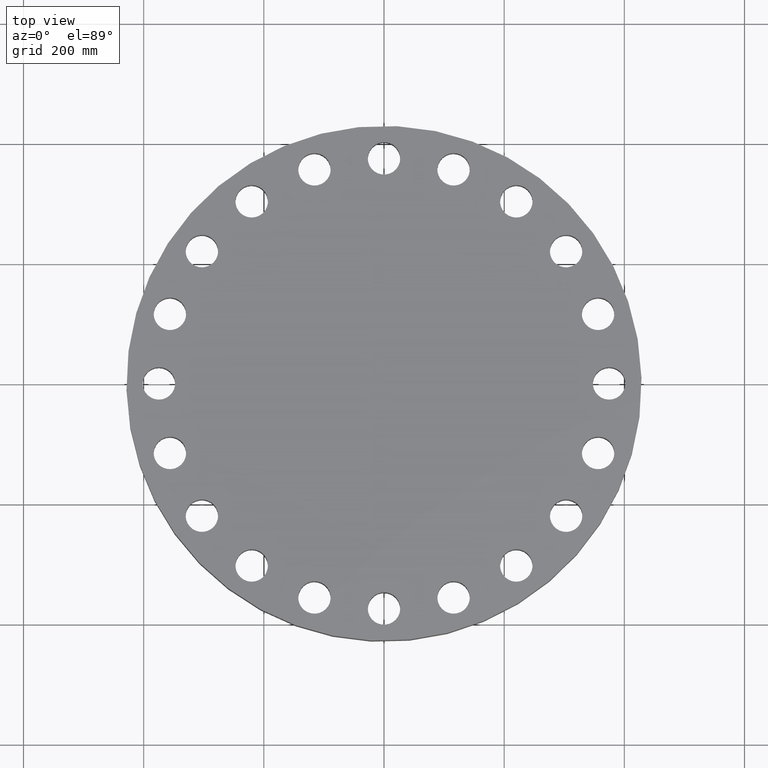
[diagram: clean part render]
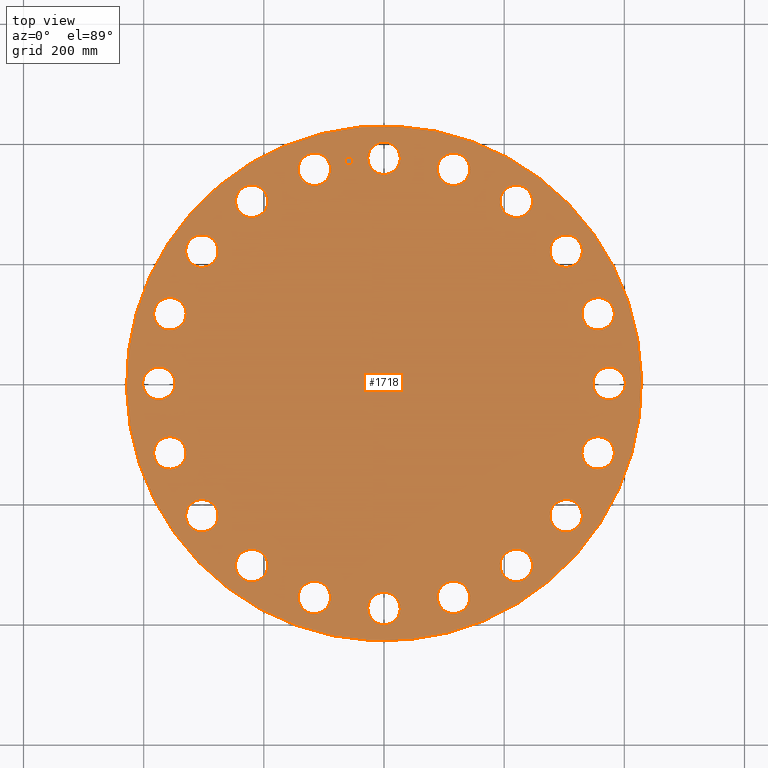
[diagram: same view with one face highlighted and labeled with its STEP entity id]
A machine part, top view. The second image highlights one B-rep face of the part: STEP entity #1718.
In plain terms, the highlighted planar face has unit normal (0, 0, -1).
Its self-contained STEP definition (entity closure, byte-faithful):
#126=AXIS2_PLACEMENT_3D('Circle Axis2P3D',#124,#125,$) ;
#143=AXIS2_PLACEMENT_3D('Circle Axis2P3D',#141,#142,$) ;
#183=AXIS2_PLACEMENT_3D('Circle Axis2P3D',#181,#182,$) ;
#200=AXIS2_PLACEMENT_3D('Circle Axis2P3D',#198,#199,$) ;
#240=AXIS2_PLACEMENT_3D('Circle Axis2P3D',#238,#239,$) ;
#257=AXIS2_PLACEMENT_3D('Circle Axis2P3D',#255,#256,$) ;
#297=AXIS2_PLACEMENT_3D('Circle Axis2P3D',#295,#296,$) ;
#314=AXIS2_PLACEMENT_3D('Circle Axis2P3D',#312,#313,$) ;
#354=AXIS2_PLACEMENT_3D('Circle Axis2P3D',#352,#353,$) ;
#371=AXIS2_PLACEMENT_3D('Circle Axis2P3D',#369,#370,$) ;
#411=AXIS2_PLACEMENT_3D('Circle Axis2P3D',#409,#410,$) ;
#428=AXIS2_PLACEMENT_3D('Circle Axis2P3D',#426,#427,$) ;
#468=AXIS2_PLACEMENT_3D('Circle Axis2P3D',#466,#467,$) ;
#485=AXIS2_PLACEMENT_3D('Circle Axis2P3D',#483,#484,$) ;
#525=AXIS2_PLACEMENT_3D('Circle Axis2P3D',#523,#524,$) ;
#542=AXIS2_PLACEMENT_3D('Circle Axis2P3D',#540,#541,$) ;
#582=AXIS2_PLACEMENT_3D('Circle Axis2P3D',#580,#581,$) ;
#599=AXIS2_PLACEMENT_3D('Circle Axis2P3D',#597,#598,$) ;
#639=AXIS2_PLACEMENT_3D('Circle Axis2P3D',#637,#638,$) ;
#656=AXIS2_PLACEMENT_3D('Circle Axis2P3D',#654,#655,$) ;
#696=AXIS2_PLACEMENT_3D('Circle Axis2P3D',#694,#695,$) ;
#713=AXIS2_PLACEMENT_3D('Circle Axis2P3D',#711,#712,$) ;
#753=AXIS2_PLACEMENT_3D('Circle Axis2P3D',#751,#752,$) ;
#770=AXIS2_PLACEMENT_3D('Circle Axis2P3D',#768,#769,$) ;
#810=AXIS2_PLACEMENT_3D('Circle Axis2P3D',#808,#809,$) ;
#827=AXIS2_PLACEMENT_3D('Circle Axis2P3D',#825,#826,$) ;
#867=AXIS2_PLACEMENT_3D('Circle Axis2P3D',#865,#866,$) ;
#884=AXIS2_PLACEMENT_3D('Circle Axis2P3D',#882,#883,$) ;
#924=AXIS2_PLACEMENT_3D('Circle Axis2P3D',#922,#923,$) ;
#941=AXIS2_PLACEMENT_3D('Circle Axis2P3D',#939,#940,$) ;
#981=AXIS2_PLACEMENT_3D('Circle Axis2P3D',#979,#980,$) ;
#998=AXIS2_PLACEMENT_3D('Circle Axis2P3D',#996,#997,$) ;
#1038=AXIS2_PLACEMENT_3D('Circle Axis2P3D',#1036,#1037,$) ;
#1055=AXIS2_PLACEMENT_3D('Circle Axis2P3D',#1053,#1054,$) ;
#1095=AXIS2_PLACEMENT_3D('Circle Axis2P3D',#1093,#1094,$) ;
#1112=AXIS2_PLACEMENT_3D('Circle Axis2P3D',#1110,#1111,$) ;
#1152=AXIS2_PLACEMENT_3D('Circle Axis2P3D',#1150,#1151,$) ;
#1169=AXIS2_PLACEMENT_3D('Circle Axis2P3D',#1167,#1168,$) ;
#1358=AXIS2_PLACEMENT_3D('Circle Axis2P3D',#1356,#1357,$) ;
#1377=AXIS2_PLACEMENT_3D('Circle Axis2P3D',#1375,#1376,$) ;
#1408=AXIS2_PLACEMENT_3D('Circle Axis2P3D',#1406,#1407,$) ;
#1420=AXIS2_PLACEMENT_3D('Circle Axis2P3D',#1418,#1419,$) ;
#1614=AXIS2_PLACEMENT_3D('Plane Axis2P3D',#1611,#1612,#1613) ;
#1702=AXIS2_PLACEMENT_3D('Circle Axis2P3D',#1700,#1701,$) ;
#1711=AXIS2_PLACEMENT_3D('Circle Axis2P3D',#1709,#1710,$) ;
#107=CARTESIAN_POINT('Vertex',(5.28910184054,13.2536702412,4.25000000002)) ;
#121=CARTESIAN_POINT('Vertex',(3.82689949356,14.8024969896,4.25000000002)) ;
#124=CARTESIAN_POINT('Axis2P3D Location',(4.55800066705,14.0280836154,4.25000000002)) ;
#141=CARTESIAN_POINT('Axis2P3D Location',(4.55800066705,14.0280836154,4.25000000002)) ;
#164=CARTESIAN_POINT('Vertex',(-0.934625428417,-14.2394118014,4.25000000002)) ;
#178=CARTESIAN_POINT('Vertex',(0.934625428417,-15.2605881987,4.25000000002)) ;
#181=CARTESIAN_POINT('Axis2P3D Location',(8.35666987406E-015,-14.7500000001,4.25000000002)) ;
#198=CARTESIAN_POINT('Axis2P3D Location',(8.35666987406E-015,-14.7500000001,4.25000000002)) ;
#221=CARTESIAN_POINT('Vertex',(-3.51133863256,13.8313005227,4.25000000002)) ;
#235=CARTESIAN_POINT('Vertex',(-5.60466270154,14.2248667081,4.25000000002)) ;
#238=CARTESIAN_POINT('Axis2P3D Location',(-4.55800066705,14.0280836154,4.25000000002)) ;
#255=CARTESIAN_POINT('Axis2P3D Location',(-4.55800066705,14.0280836154,4.25000000002)) ;
#278=CARTESIAN_POINT('Vertex',(3.51133863256,-13.8313005227,4.25000000002)) ;
#292=CARTESIAN_POINT('Vertex',(5.60466270154,-14.2248667081,4.25000000002)) ;
#295=CARTESIAN_POINT('Axis2P3D Location',(4.55800066705,-14.0280836154,4.25000000002)) ;
#312=CARTESIAN_POINT('Axis2P3D Location',(4.55800066705,-14.0280836154,4.25000000002)) ;
#335=CARTESIAN_POINT('Vertex',(-7.61358840324,12.0692851805,4.25000000002)) ;
#349=CARTESIAN_POINT('Vertex',(-9.72607653945,11.7967161536,4.25000000002)) ;
#352=CARTESIAN_POINT('Axis2P3D Location',(-8.66983247135,11.9330006671,4.25000000002)) ;
#369=CARTESIAN_POINT('Axis2P3D Location',(-8.66983247135,11.9330006671,4.25000000002)) ;
#392=CARTESIAN_POINT('Vertex',(7.61358840324,-12.0692851805,4.25000000002)) ;
#406=CARTESIAN_POINT('Vertex',(9.72607653945,-11.7967161536,4.25000000002)) ;
#409=CARTESIAN_POINT('Axis2P3D Location',(8.66983247135,-11.9330006671,4.25000000002)) ;
#426=CARTESIAN_POINT('Axis2P3D Location',(8.66983247135,-11.9330006671,4.25000000002)) ;
#449=CARTESIAN_POINT('Vertex',(-10.970567094,9.12584411317,4.25000000002)) ;
#463=CARTESIAN_POINT('Vertex',(-12.8954342401,8.21382082953,4.25000000002)) ;
#466=CARTESIAN_POINT('Axis2P3D Location',(-11.9330006671,8.66983247135,4.25000000002)) ;
#483=CARTESIAN_POINT('Axis2P3D Location',(-11.9330006671,8.66983247135,4.25000000002)) ;
#506=CARTESIAN_POINT('Vertex',(10.970567094,-9.12584411317,4.25000000002)) ;
#520=CARTESIAN_POINT('Vertex',(12.8954342401,-8.21382082953,4.25000000002)) ;
#523=CARTESIAN_POINT('Axis2P3D Location',(11.9330006671,-8.66983247135,4.25000000002)) ;
#540=CARTESIAN_POINT('Axis2P3D Location',(11.9330006671,-8.66983247135,4.25000000002)) ;
#563=CARTESIAN_POINT('Vertex',(-13.2536702412,5.28910184054,4.25000000002)) ;
#577=CARTESIAN_POINT('Vertex',(-14.8024969896,3.82689949356,4.25000000002)) ;
#580=CARTESIAN_POINT('Axis2P3D Location',(-14.0280836154,4.55800066705,4.25000000002)) ;
#597=CARTESIAN_POINT('Axis2P3D Location',(-14.0280836154,4.55800066705,4.25000000002)) ;
#620=CARTESIAN_POINT('Vertex',(13.2536702412,-5.28910184054,4.25000000002)) ;
#634=CARTESIAN_POINT('Vertex',(14.8024969896,-3.82689949356,4.25000000002)) ;
#637=CARTESIAN_POINT('Axis2P3D Location',(14.0280836154,-4.55800066705,4.25000000002)) ;
#654=CARTESIAN_POINT('Axis2P3D Location',(14.0280836154,-4.55800066705,4.25000000002)) ;
#677=CARTESIAN_POINT('Vertex',(-14.2394118014,0.934625428417,4.25000000002)) ;
#691=CARTESIAN_POINT('Vertex',(-15.2605881987,-0.934625428417,4.25000000002)) ;
#694=CARTESIAN_POINT('Axis2P3D Location',(-14.7500000001,-1.58101627338E-014,4.25000000002)) ;
#711=CARTESIAN_POINT('Axis2P3D Location',(-14.7500000001,-1.58101627338E-014,4.25000000002)) ;
#734=CARTESIAN_POINT('Vertex',(14.2394118014,-0.934625428417,4.25000000002)) ;
#748=CARTESIAN_POINT('Vertex',(15.2605881987,0.934625428417,4.25000000002)) ;
#751=CARTESIAN_POINT('Axis2P3D Location',(14.7500000001,4.17833493703E-015,4.25000000002)) ;
#768=CARTESIAN_POINT('Axis2P3D Location',(14.7500000001,4.17833493703E-015,4.25000000002)) ;
#791=CARTESIAN_POINT('Vertex',(-13.8313005227,-3.51133863256,4.25000000002)) ;
#805=CARTESIAN_POINT('Vertex',(-14.2248667081,-5.60466270154,4.25000000002)) ;
#808=CARTESIAN_POINT('Axis2P3D Location',(-14.0280836154,-4.55800066705,4.25000000002)) ;
#825=CARTESIAN_POINT('Axis2P3D Location',(-14.0280836154,-4.55800066705,4.25000000002)) ;
#848=CARTESIAN_POINT('Vertex',(13.8313005227,3.51133863256,4.25000000002)) ;
#862=CARTESIAN_POINT('Vertex',(14.2248667081,5.60466270154,4.25000000002)) ;
#865=CARTESIAN_POINT('Axis2P3D Location',(14.0280836154,4.55800066705,4.25000000002)) ;
#882=CARTESIAN_POINT('Axis2P3D Location',(14.0280836154,4.55800066705,4.25000000002)) ;
#905=CARTESIAN_POINT('Vertex',(-12.0692851805,-7.61358840324,4.25000000002)) ;
#919=CARTESIAN_POINT('Vertex',(-11.7967161536,-9.72607653945,4.25000000002)) ;
#922=CARTESIAN_POINT('Axis2P3D Location',(-11.9330006671,-8.66983247135,4.25000000002)) ;
#939=CARTESIAN_POINT('Axis2P3D Location',(-11.9330006671,-8.66983247135,4.25000000002)) ;
#962=CARTESIAN_POINT('Vertex',(12.0692851805,7.61358840324,4.25000000002)) ;
#976=CARTESIAN_POINT('Vertex',(11.7967161536,9.72607653945,4.25000000002)) ;
#979=CARTESIAN_POINT('Axis2P3D Location',(11.9330006671,8.66983247135,4.25000000002)) ;
#996=CARTESIAN_POINT('Axis2P3D Location',(11.9330006671,8.66983247135,4.25000000002)) ;
#1019=CARTESIAN_POINT('Vertex',(-9.12584411317,-10.970567094,4.25000000002)) ;
#1033=CARTESIAN_POINT('Vertex',(-8.21382082953,-12.8954342401,4.25000000002)) ;
#1036=CARTESIAN_POINT('Axis2P3D Location',(-8.66983247135,-11.9330006671,4.25000000002)) ;
#1053=CARTESIAN_POINT('Axis2P3D Location',(-8.66983247135,-11.9330006671,4.25000000002)) ;
#1076=CARTESIAN_POINT('Vertex',(9.12584411317,10.970567094,4.25000000002)) ;
#1090=CARTESIAN_POINT('Vertex',(8.21382082953,12.8954342401,4.25000000002)) ;
#1093=CARTESIAN_POINT('Axis2P3D Location',(8.66983247135,11.9330006671,4.25000000002)) ;
#1110=CARTESIAN_POINT('Axis2P3D Location',(8.66983247135,11.9330006671,4.25000000002)) ;
#1133=CARTESIAN_POINT('Vertex',(-5.28910184054,-13.2536702412,4.25000000002)) ;
#1147=CARTESIAN_POINT('Vertex',(-3.82689949356,-14.8024969896,4.25000000002)) ;
#1150=CARTESIAN_POINT('Axis2P3D Location',(-4.55800066705,-14.0280836154,4.25000000002)) ;
#1167=CARTESIAN_POINT('Axis2P3D Location',(-4.55800066705,-14.0280836154,4.25000000002)) ;
#1353=CARTESIAN_POINT('Vertex',(8.09030596398,14.809205732,4.25000000002)) ;
#1356=CARTESIAN_POINT('Axis2P3D Location',(0.,0.,4.25000000002)) ;
#1360=CARTESIAN_POINT('Vertex',(-8.09030596398,-14.809205732,4.25000000002)) ;
#1375=CARTESIAN_POINT('Axis2P3D Location',(0.,0.,4.25000000002)) ;
#1396=CARTESIAN_POINT('Vertex',(0.934625428417,14.2394118014,4.25000000002)) ;
#1403=CARTESIAN_POINT('Vertex',(-0.934625428417,15.2605881987,4.25000000002)) ;
#1406=CARTESIAN_POINT('Axis2P3D Location',(0.,14.7500000001,4.25000000002)) ;
#1418=CARTESIAN_POINT('Axis2P3D Location',(0.,14.7500000001,4.25000000002)) ;
#1611=CARTESIAN_POINT('Axis2P3D Location',(0.,16.8750000001,4.25000000002)) ;
#1700=CARTESIAN_POINT('Axis2P3D Location',(-2.30740835935,14.5684030238,4.25000000002)) ;
#1704=CARTESIAN_POINT('Vertex',(-2.55186122365,14.5296854937,4.25000000002)) ;
#1706=CARTESIAN_POINT('Vertex',(-2.06295549505,14.6071205539,4.25000000002)) ;
#1709=CARTESIAN_POINT('Axis2P3D Location',(-2.30740835935,14.5684030238,4.25000000002)) ;
#125=DIRECTION('Axis2P3D Direction',(0.,-0.,-0.0393700787402)) ;
#142=DIRECTION('Axis2P3D Direction',(0.,-0.,-0.0393700787402)) ;
#182=DIRECTION('Axis2P3D Direction',(-0.,0.,-0.0393700787402)) ;
#199=DIRECTION('Axis2P3D Direction',(-0.,0.,-0.0393700787402)) ;
#239=DIRECTION('Axis2P3D Direction',(0.,0.,-0.0393700787402)) ;
#256=DIRECTION('Axis2P3D Direction',(0.,0.,-0.0393700787402)) ;
#296=DIRECTION('Axis2P3D Direction',(-0.,0.,-0.0393700787402)) ;
#313=DIRECTION('Axis2P3D Direction',(-0.,0.,-0.0393700787402)) ;
#353=DIRECTION('Axis2P3D Direction',(0.,0.,-0.0393700787402)) ;
#370=DIRECTION('Axis2P3D Direction',(0.,0.,-0.0393700787402)) ;
#410=DIRECTION('Axis2P3D Direction',(-0.,0.,-0.0393700787402)) ;
#427=DIRECTION('Axis2P3D Direction',(-0.,0.,-0.0393700787402)) ;
#467=DIRECTION('Axis2P3D Direction',(0.,0.,-0.0393700787402)) ;
#484=DIRECTION('Axis2P3D Direction',(0.,0.,-0.0393700787402)) ;
#524=DIRECTION('Axis2P3D Direction',(-0.,0.,-0.0393700787402)) ;
#541=DIRECTION('Axis2P3D Direction',(-0.,0.,-0.0393700787402)) ;
#581=DIRECTION('Axis2P3D Direction',(0.,0.,-0.0393700787402)) ;
#598=DIRECTION('Axis2P3D Direction',(0.,0.,-0.0393700787402)) ;
#638=DIRECTION('Axis2P3D Direction',(-0.,0.,-0.0393700787402)) ;
#655=DIRECTION('Axis2P3D Direction',(-0.,0.,-0.0393700787402)) ;
#695=DIRECTION('Axis2P3D Direction',(0.,0.,-0.0393700787402)) ;
#712=DIRECTION('Axis2P3D Direction',(0.,0.,-0.0393700787402)) ;
#752=DIRECTION('Axis2P3D Direction',(0.,-0.,-0.0393700787402)) ;
#769=DIRECTION('Axis2P3D Direction',(0.,-0.,-0.0393700787402)) ;
#809=DIRECTION('Axis2P3D Direction',(0.,0.,-0.0393700787402)) ;
#826=DIRECTION('Axis2P3D Direction',(0.,0.,-0.0393700787402)) ;
#866=DIRECTION('Axis2P3D Direction',(0.,-0.,-0.0393700787402)) ;
#883=DIRECTION('Axis2P3D Direction',(0.,-0.,-0.0393700787402)) ;
#923=DIRECTION('Axis2P3D Direction',(0.,0.,-0.0393700787402)) ;
#940=DIRECTION('Axis2P3D Direction',(0.,0.,-0.0393700787402)) ;
#980=DIRECTION('Axis2P3D Direction',(0.,-0.,-0.0393700787402)) ;
#997=DIRECTION('Axis2P3D Direction',(0.,-0.,-0.0393700787402)) ;
#1037=DIRECTION('Axis2P3D Direction',(0.,0.,-0.0393700787402)) ;
#1054=DIRECTION('Axis2P3D Direction',(0.,0.,-0.0393700787402)) ;
#1094=DIRECTION('Axis2P3D Direction',(0.,-0.,-0.0393700787402)) ;
#1111=DIRECTION('Axis2P3D Direction',(0.,-0.,-0.0393700787402)) ;
#1151=DIRECTION('Axis2P3D Direction',(0.,0.,-0.0393700787402)) ;
#1168=DIRECTION('Axis2P3D Direction',(0.,0.,-0.0393700787402)) ;
#1357=DIRECTION('Axis2P3D Direction',(0.,0.,-0.0393700787402)) ;
#1376=DIRECTION('Axis2P3D Direction',(0.,0.,-0.0393700787402)) ;
#1407=DIRECTION('Axis2P3D Direction',(0.,-0.,-0.0393700787402)) ;
#1419=DIRECTION('Axis2P3D Direction',(0.,-0.,-0.0393700787402)) ;
#1612=DIRECTION('Axis2P3D Direction',(0.,0.,-0.0393700787402)) ;
#1613=DIRECTION('Axis2P3D XDirection',(0.0393700787402,0.,0.)) ;
#1701=DIRECTION('Axis2P3D Direction',(0.,0.,-0.0393700787402)) ;
#1710=DIRECTION('Axis2P3D Direction',(0.,0.,-0.0393700787402)) ;
#1617=ORIENTED_EDGE('',*,*,#1362,.F.) ;
#1618=ORIENTED_EDGE('',*,*,#1379,.F.) ;
#1621=ORIENTED_EDGE('',*,*,#1422,.T.) ;
#1622=ORIENTED_EDGE('',*,*,#1410,.T.) ;
#1625=ORIENTED_EDGE('',*,*,#128,.T.) ;
#1626=ORIENTED_EDGE('',*,*,#145,.T.) ;
#1629=ORIENTED_EDGE('',*,*,#1097,.T.) ;
#1630=ORIENTED_EDGE('',*,*,#1114,.T.) ;
#1633=ORIENTED_EDGE('',*,*,#983,.T.) ;
#1634=ORIENTED_EDGE('',*,*,#1000,.T.) ;
#1637=ORIENTED_EDGE('',*,*,#869,.T.) ;
#1638=ORIENTED_EDGE('',*,*,#886,.T.) ;
#1641=ORIENTED_EDGE('',*,*,#755,.T.) ;
#1642=ORIENTED_EDGE('',*,*,#772,.T.) ;
#1645=ORIENTED_EDGE('',*,*,#641,.T.) ;
#1646=ORIENTED_EDGE('',*,*,#658,.T.) ;
#1649=ORIENTED_EDGE('',*,*,#527,.T.) ;
#1650=ORIENTED_EDGE('',*,*,#544,.T.) ;
#1653=ORIENTED_EDGE('',*,*,#413,.T.) ;
#1654=ORIENTED_EDGE('',*,*,#430,.T.) ;
#1657=ORIENTED_EDGE('',*,*,#299,.T.) ;
#1658=ORIENTED_EDGE('',*,*,#316,.T.) ;
#1661=ORIENTED_EDGE('',*,*,#185,.T.) ;
#1662=ORIENTED_EDGE('',*,*,#202,.T.) ;
#1665=ORIENTED_EDGE('',*,*,#1154,.T.) ;
#1666=ORIENTED_EDGE('',*,*,#1171,.T.) ;
#1669=ORIENTED_EDGE('',*,*,#1040,.T.) ;
#1670=ORIENTED_EDGE('',*,*,#1057,.T.) ;
#1673=ORIENTED_EDGE('',*,*,#926,.T.) ;
#1674=ORIENTED_EDGE('',*,*,#943,.T.) ;
#1677=ORIENTED_EDGE('',*,*,#812,.T.) ;
#1678=ORIENTED_EDGE('',*,*,#829,.T.) ;
#1681=ORIENTED_EDGE('',*,*,#698,.T.) ;
#1682=ORIENTED_EDGE('',*,*,#715,.T.) ;
#1685=ORIENTED_EDGE('',*,*,#584,.T.) ;
#1686=ORIENTED_EDGE('',*,*,#601,.T.) ;
#1689=ORIENTED_EDGE('',*,*,#470,.T.) ;
#1690=ORIENTED_EDGE('',*,*,#487,.T.) ;
#1693=ORIENTED_EDGE('',*,*,#356,.T.) ;
#1694=ORIENTED_EDGE('',*,*,#373,.T.) ;
#1697=ORIENTED_EDGE('',*,*,#242,.T.) ;
#1698=ORIENTED_EDGE('',*,*,#259,.T.) ;
#1715=ORIENTED_EDGE('',*,*,#1708,.T.) ;
#1716=ORIENTED_EDGE('',*,*,#1713,.T.) ;
#1623=FACE_BOUND('',#1620,.T.) ;
#1627=FACE_BOUND('',#1624,.T.) ;
#1631=FACE_BOUND('',#1628,.T.) ;
#1635=FACE_BOUND('',#1632,.T.) ;
#1639=FACE_BOUND('',#1636,.T.) ;
#1643=FACE_BOUND('',#1640,.T.) ;
#1647=FACE_BOUND('',#1644,.T.) ;
#1651=FACE_BOUND('',#1648,.T.) ;
#1655=FACE_BOUND('',#1652,.T.) ;
#1659=FACE_BOUND('',#1656,.T.) ;
#1663=FACE_BOUND('',#1660,.T.) ;
#1667=FACE_BOUND('',#1664,.T.) ;
#1671=FACE_BOUND('',#1668,.T.) ;
#1675=FACE_BOUND('',#1672,.T.) ;
#1679=FACE_BOUND('',#1676,.T.) ;
#1683=FACE_BOUND('',#1680,.T.) ;
#1687=FACE_BOUND('',#1684,.T.) ;
#1691=FACE_BOUND('',#1688,.T.) ;
#1695=FACE_BOUND('',#1692,.T.) ;
#1699=FACE_BOUND('',#1696,.T.) ;
#1717=FACE_BOUND('',#1714,.T.) ;
#1718=ADVANCED_FACE('PartBody',(#1619,#1623,#1627,#1631,#1635,#1639,#1643,#1647,#1651,#1655,#1659,#1663,#1667,#1671,#1675,#1679,#1683,#1687,#1691,#1695,#1699,#1717),#1615,.F.) ;
#127=CIRCLE('generated circle',#126,1.065) ;
#144=CIRCLE('generated circle',#143,1.065) ;
#184=CIRCLE('generated circle',#183,1.065) ;
#201=CIRCLE('generated circle',#200,1.065) ;
#241=CIRCLE('generated circle',#240,1.065) ;
#258=CIRCLE('generated circle',#257,1.065) ;
#298=CIRCLE('generated circle',#297,1.065) ;
#315=CIRCLE('generated circle',#314,1.065) ;
#355=CIRCLE('generated circle',#354,1.065) ;
#372=CIRCLE('generated circle',#371,1.065) ;
#412=CIRCLE('generated circle',#411,1.065) ;
#429=CIRCLE('generated circle',#428,1.065) ;
#469=CIRCLE('generated circle',#468,1.065) ;
#486=CIRCLE('generated circle',#485,1.065) ;
#526=CIRCLE('generated circle',#525,1.065) ;
#543=CIRCLE('generated circle',#542,1.065) ;
#583=CIRCLE('generated circle',#582,1.065) ;
#600=CIRCLE('generated circle',#599,1.065) ;
#640=CIRCLE('generated circle',#639,1.065) ;
#657=CIRCLE('generated circle',#656,1.065) ;
#697=CIRCLE('generated circle',#696,1.065) ;
#714=CIRCLE('generated circle',#713,1.065) ;
#754=CIRCLE('generated circle',#753,1.065) ;
#771=CIRCLE('generated circle',#770,1.065) ;
#811=CIRCLE('generated circle',#810,1.065) ;
#828=CIRCLE('generated circle',#827,1.065) ;
#868=CIRCLE('generated circle',#867,1.065) ;
#885=CIRCLE('generated circle',#884,1.065) ;
#925=CIRCLE('generated circle',#924,1.065) ;
#942=CIRCLE('generated circle',#941,1.065) ;
#982=CIRCLE('generated circle',#981,1.065) ;
#999=CIRCLE('generated circle',#998,1.065) ;
#1039=CIRCLE('generated circle',#1038,1.065) ;
#1056=CIRCLE('generated circle',#1055,1.065) ;
#1096=CIRCLE('generated circle',#1095,1.065) ;
#1113=CIRCLE('generated circle',#1112,1.065) ;
#1153=CIRCLE('generated circle',#1152,1.065) ;
#1170=CIRCLE('generated circle',#1169,1.065) ;
#1359=CIRCLE('generated circle',#1358,16.8750000001) ;
#1378=CIRCLE('generated circle',#1377,16.8750000001) ;
#1409=CIRCLE('generated circle',#1408,1.065) ;
#1421=CIRCLE('generated circle',#1420,1.065) ;
#1703=CIRCLE('generated circle',#1702,0.247500000001) ;
#1712=CIRCLE('generated circle',#1711,0.247500000001) ;
#128=EDGE_CURVE('',#108,#122,#127,.T.) ;
#145=EDGE_CURVE('',#122,#108,#144,.T.) ;
#185=EDGE_CURVE('',#165,#179,#184,.T.) ;
#202=EDGE_CURVE('',#179,#165,#201,.T.) ;
#242=EDGE_CURVE('',#222,#236,#241,.T.) ;
#259=EDGE_CURVE('',#236,#222,#258,.T.) ;
#299=EDGE_CURVE('',#279,#293,#298,.T.) ;
#316=EDGE_CURVE('',#293,#279,#315,.T.) ;
#356=EDGE_CURVE('',#336,#350,#355,.T.) ;
#373=EDGE_CURVE('',#350,#336,#372,.T.) ;
#413=EDGE_CURVE('',#393,#407,#412,.T.) ;
#430=EDGE_CURVE('',#407,#393,#429,.T.) ;
#470=EDGE_CURVE('',#450,#464,#469,.T.) ;
#487=EDGE_CURVE('',#464,#450,#486,.T.) ;
#527=EDGE_CURVE('',#507,#521,#526,.T.) ;
#544=EDGE_CURVE('',#521,#507,#543,.T.) ;
#584=EDGE_CURVE('',#564,#578,#583,.T.) ;
#601=EDGE_CURVE('',#578,#564,#600,.T.) ;
#641=EDGE_CURVE('',#621,#635,#640,.T.) ;
#658=EDGE_CURVE('',#635,#621,#657,.T.) ;
#698=EDGE_CURVE('',#678,#692,#697,.T.) ;
#715=EDGE_CURVE('',#692,#678,#714,.T.) ;
#755=EDGE_CURVE('',#735,#749,#754,.T.) ;
#772=EDGE_CURVE('',#749,#735,#771,.T.) ;
#812=EDGE_CURVE('',#792,#806,#811,.T.) ;
#829=EDGE_CURVE('',#806,#792,#828,.T.) ;
#869=EDGE_CURVE('',#849,#863,#868,.T.) ;
#886=EDGE_CURVE('',#863,#849,#885,.T.) ;
#926=EDGE_CURVE('',#906,#920,#925,.T.) ;
#943=EDGE_CURVE('',#920,#906,#942,.T.) ;
#983=EDGE_CURVE('',#963,#977,#982,.T.) ;
#1000=EDGE_CURVE('',#977,#963,#999,.T.) ;
#1040=EDGE_CURVE('',#1020,#1034,#1039,.T.) ;
#1057=EDGE_CURVE('',#1034,#1020,#1056,.T.) ;
#1097=EDGE_CURVE('',#1077,#1091,#1096,.T.) ;
#1114=EDGE_CURVE('',#1091,#1077,#1113,.T.) ;
#1154=EDGE_CURVE('',#1134,#1148,#1153,.T.) ;
#1171=EDGE_CURVE('',#1148,#1134,#1170,.T.) ;
#1362=EDGE_CURVE('',#1354,#1361,#1359,.T.) ;
#1379=EDGE_CURVE('',#1361,#1354,#1378,.T.) ;
#1410=EDGE_CURVE('',#1397,#1404,#1409,.T.) ;
#1422=EDGE_CURVE('',#1404,#1397,#1421,.T.) ;
#1708=EDGE_CURVE('',#1705,#1707,#1703,.T.) ;
#1713=EDGE_CURVE('',#1707,#1705,#1712,.T.) ;
#1616=EDGE_LOOP('',(#1617,#1618)) ;
#1620=EDGE_LOOP('',(#1621,#1622)) ;
#1624=EDGE_LOOP('',(#1625,#1626)) ;
#1628=EDGE_LOOP('',(#1629,#1630)) ;
#1632=EDGE_LOOP('',(#1633,#1634)) ;
#1636=EDGE_LOOP('',(#1637,#1638)) ;
#1640=EDGE_LOOP('',(#1641,#1642)) ;
#1644=EDGE_LOOP('',(#1645,#1646)) ;
#1648=EDGE_LOOP('',(#1649,#1650)) ;
#1652=EDGE_LOOP('',(#1653,#1654)) ;
#1656=EDGE_LOOP('',(#1657,#1658)) ;
#1660=EDGE_LOOP('',(#1661,#1662)) ;
#1664=EDGE_LOOP('',(#1665,#1666)) ;
#1668=EDGE_LOOP('',(#1669,#1670)) ;
#1672=EDGE_LOOP('',(#1673,#1674)) ;
#1676=EDGE_LOOP('',(#1677,#1678)) ;
#1680=EDGE_LOOP('',(#1681,#1682)) ;
#1684=EDGE_LOOP('',(#1685,#1686)) ;
#1688=EDGE_LOOP('',(#1689,#1690)) ;
#1692=EDGE_LOOP('',(#1693,#1694)) ;
#1696=EDGE_LOOP('',(#1697,#1698)) ;
#1714=EDGE_LOOP('',(#1715,#1716)) ;
#1619=FACE_OUTER_BOUND('',#1616,.T.) ;
#1615=PLANE('',#1614) ;
#108=VERTEX_POINT('',#107) ;
#122=VERTEX_POINT('',#121) ;
#165=VERTEX_POINT('',#164) ;
#179=VERTEX_POINT('',#178) ;
#222=VERTEX_POINT('',#221) ;
#236=VERTEX_POINT('',#235) ;
#279=VERTEX_POINT('',#278) ;
#293=VERTEX_POINT('',#292) ;
#336=VERTEX_POINT('',#335) ;
#350=VERTEX_POINT('',#349) ;
#393=VERTEX_POINT('',#392) ;
#407=VERTEX_POINT('',#406) ;
#450=VERTEX_POINT('',#449) ;
#464=VERTEX_POINT('',#463) ;
#507=VERTEX_POINT('',#506) ;
#521=VERTEX_POINT('',#520) ;
#564=VERTEX_POINT('',#563) ;
#578=VERTEX_POINT('',#577) ;
#621=VERTEX_POINT('',#620) ;
#635=VERTEX_POINT('',#634) ;
#678=VERTEX_POINT('',#677) ;
#692=VERTEX_POINT('',#691) ;
#735=VERTEX_POINT('',#734) ;
#749=VERTEX_POINT('',#748) ;
#792=VERTEX_POINT('',#791) ;
#806=VERTEX_POINT('',#805) ;
#849=VERTEX_POINT('',#848) ;
#863=VERTEX_POINT('',#862) ;
#906=VERTEX_POINT('',#905) ;
#920=VERTEX_POINT('',#919) ;
#963=VERTEX_POINT('',#962) ;
#977=VERTEX_POINT('',#976) ;
#1020=VERTEX_POINT('',#1019) ;
#1034=VERTEX_POINT('',#1033) ;
#1077=VERTEX_POINT('',#1076) ;
#1091=VERTEX_POINT('',#1090) ;
#1134=VERTEX_POINT('',#1133) ;
#1148=VERTEX_POINT('',#1147) ;
#1354=VERTEX_POINT('',#1353) ;
#1361=VERTEX_POINT('',#1360) ;
#1397=VERTEX_POINT('',#1396) ;
#1404=VERTEX_POINT('',#1403) ;
#1705=VERTEX_POINT('',#1704) ;
#1707=VERTEX_POINT('',#1706) ;